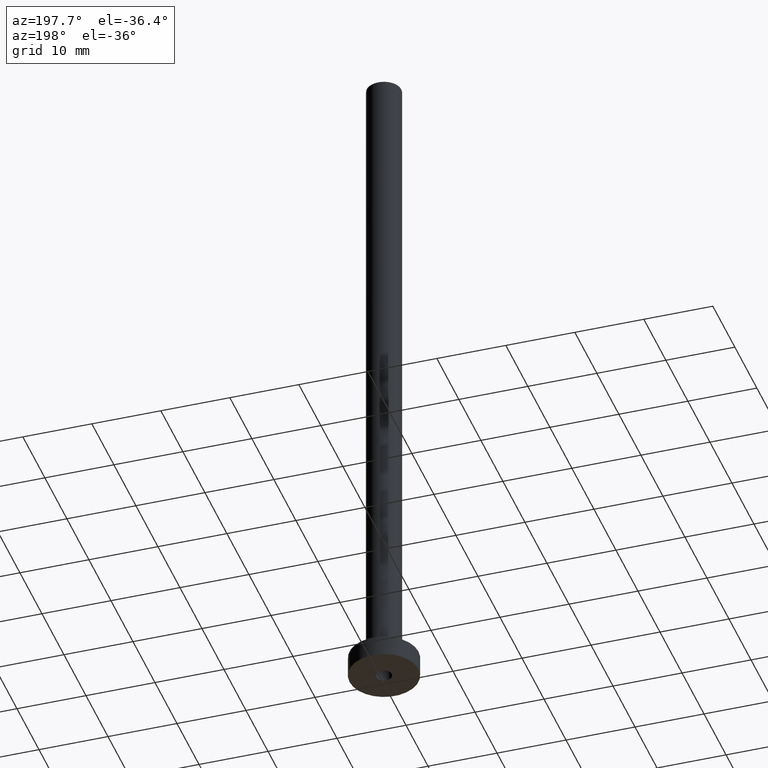
[diagram: clean part render]
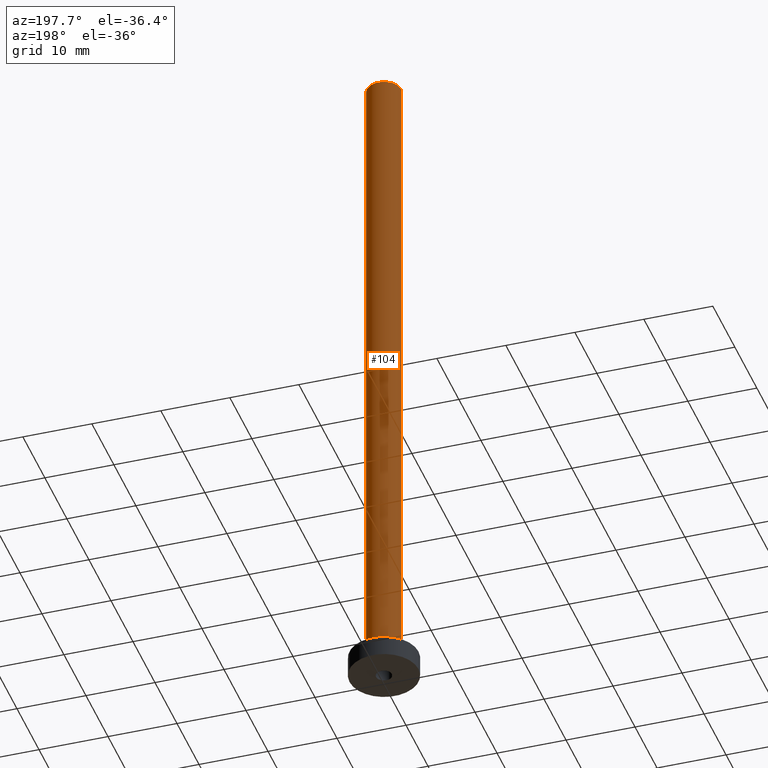
[diagram: same view with one face highlighted and labeled with its STEP entity id]
A machine part, auxiliary view. The second image highlights one B-rep face of the part: STEP entity #104.
In plain terms, the highlighted cylindrical surface (edge-blend (fillet) strip) has radius 2.5 mm, axis along (-0, -0, -1).
Its self-contained STEP definition (entity closure, byte-faithful):
#3 = DIRECTION ( 'NONE',  ( 0.000000000000000000, 0.000000000000000000, 1.000000000000000000 ) ) ;
#6 = EDGE_CURVE ( 'NONE', #172, #64, #363, .T. ) ;
#10 = DIRECTION ( 'NONE',  ( 1.000000000000000000, 0.000000000000000000, 0.000000000000000000 ) ) ;
#15 = DIRECTION ( 'NONE',  ( -0.000000000000000000, -0.000000000000000000, -1.000000000000000000 ) ) ;
#26 = LINE ( 'NONE', #235, #438 ) ;
#43 = CARTESIAN_POINT ( 'NONE',  ( -2.500000000000000000, 0.000000000000000000, 100.0000000000000000 ) ) ;
#46 = AXIS2_PLACEMENT_3D ( 'NONE', #262, #15, #408 ) ;
#57 = DIRECTION ( 'NONE',  ( -0.000000000000000000, -0.000000000000000000, -1.000000000000000000 ) ) ;
#64 = VERTEX_POINT ( 'NONE', #43 ) ;
#65 = AXIS2_PLACEMENT_3D ( 'NONE', #353, #3, #10 ) ;
#72 = AXIS2_PLACEMENT_3D ( 'NONE', #355, #106, #212 ) ;
#77 = VERTEX_POINT ( 'NONE', #365 ) ;
#93 = CIRCLE ( 'NONE', #72, 2.500000000000000000 ) ;
#104 = ADVANCED_FACE ( 'NONE', ( #335 ), #295, .T. ) ;
#106 = DIRECTION ( 'NONE',  ( 0.000000000000000000, 0.000000000000000000, 1.000000000000000000 ) ) ;
#110 = VERTEX_POINT ( 'NONE', #187 ) ;
#123 = CARTESIAN_POINT ( 'NONE',  ( -2.500000000000000000, 0.000000000000000000, 100.0000000000000000 ) ) ;
#168 = EDGE_LOOP ( 'NONE', ( #382, #426, #433, #202 ) ) ;
#172 = VERTEX_POINT ( 'NONE', #201 ) ;
#187 = CARTESIAN_POINT ( 'NONE',  ( -2.500000000000000000, 0.000000000000000000, 3.299999999999997158 ) ) ;
#201 = CARTESIAN_POINT ( 'NONE',  ( 2.500000000000000000, 3.061616997868382648E-16, 100.0000000000000000 ) ) ;
#202 = ORIENTED_EDGE ( 'NONE', *, *, #289, .F. ) ;
#206 = LINE ( 'NONE', #123, #216 ) ;
#212 = DIRECTION ( 'NONE',  ( 1.000000000000000000, 0.000000000000000000, 0.000000000000000000 ) ) ;
#216 = VECTOR ( 'NONE', #57, 1000.000000000000000 ) ;
#229 = EDGE_CURVE ( 'NONE', #172, #77, #26, .T. ) ;
#235 = CARTESIAN_POINT ( 'NONE',  ( 2.500000000000000000, 3.061616997868382648E-16, 100.0000000000000000 ) ) ;
#262 = CARTESIAN_POINT ( 'NONE',  ( 0.000000000000000000, 0.000000000000000000, 100.0000000000000000 ) ) ;
#289 = EDGE_CURVE ( 'NONE', #64, #110, #206, .T. ) ;
#295 = CYLINDRICAL_SURFACE ( 'NONE', #46, 2.500000000000000000 ) ;
#335 = FACE_OUTER_BOUND ( 'NONE', #168, .T. ) ;
#340 = DIRECTION ( 'NONE',  ( -0.000000000000000000, -0.000000000000000000, -1.000000000000000000 ) ) ;
#353 = CARTESIAN_POINT ( 'NONE',  ( 0.000000000000000000, 0.000000000000000000, 100.0000000000000000 ) ) ;
#355 = CARTESIAN_POINT ( 'NONE',  ( 0.000000000000000000, 0.000000000000000000, 3.299999999999997158 ) ) ;
#363 = CIRCLE ( 'NONE', #65, 2.500000000000000000 ) ;
#365 = CARTESIAN_POINT ( 'NONE',  ( 2.500000000000000000, 3.061616997868382648E-16, 3.299999999999997158 ) ) ;
#382 = ORIENTED_EDGE ( 'NONE', *, *, #6, .F. ) ;
#408 = DIRECTION ( 'NONE',  ( -1.000000000000000000, 0.000000000000000000, 0.000000000000000000 ) ) ;
#409 = EDGE_CURVE ( 'NONE', #77, #110, #93, .T. ) ;
#426 = ORIENTED_EDGE ( 'NONE', *, *, #229, .T. ) ;
#433 = ORIENTED_EDGE ( 'NONE', *, *, #409, .T. ) ;
#438 = VECTOR ( 'NONE', #340, 1000.000000000000000 ) ;